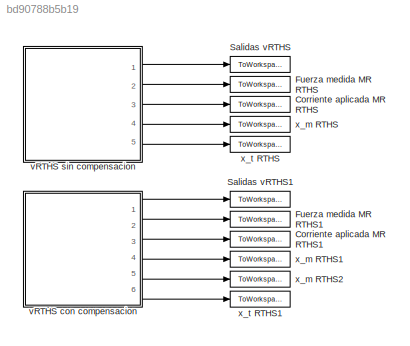
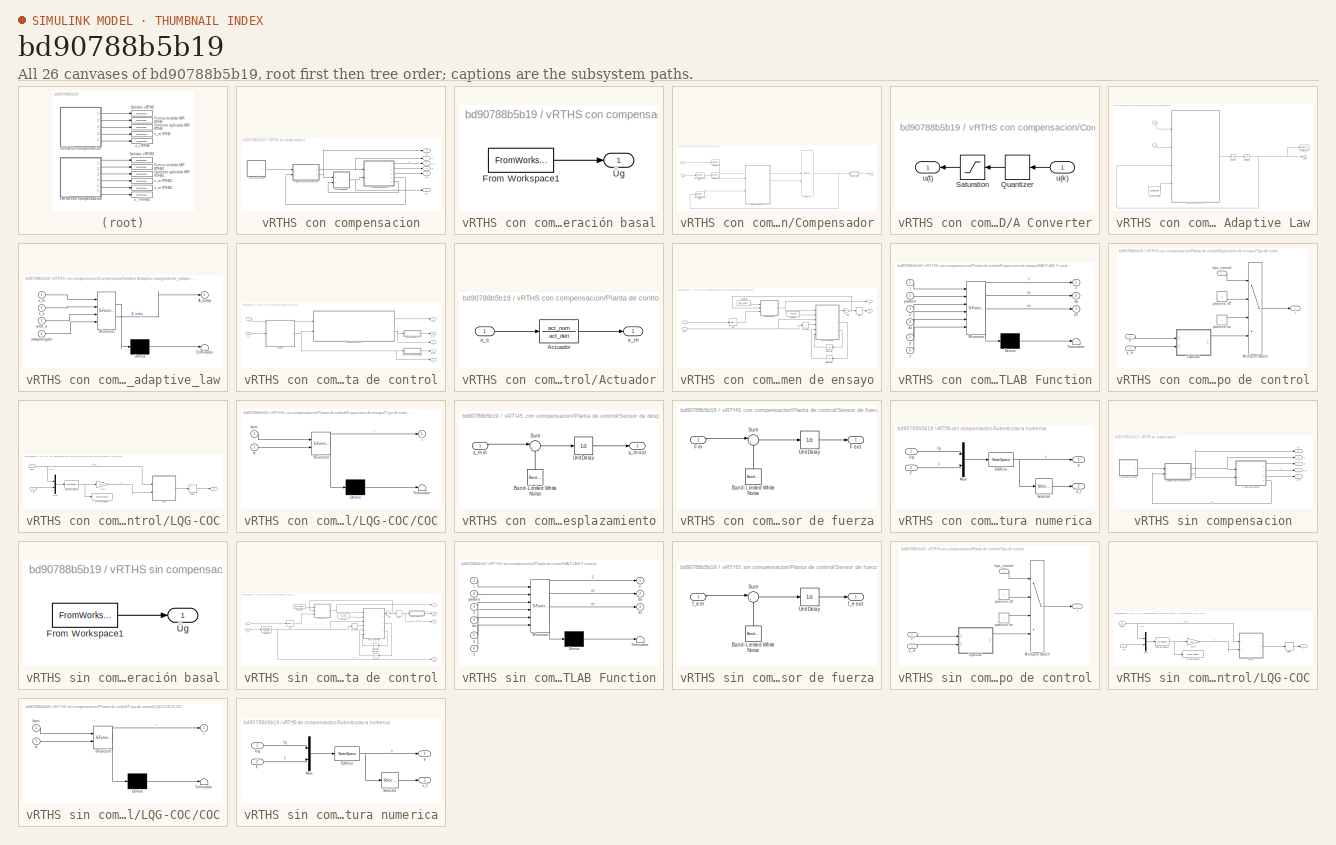
[diagram: thumbnail index - all 26 canvases of the model, root first then tree order]
MODEL slx_bd90788b5b19
KIND model
CONFIG AbsTol = auto
CONFIG EnableMultiTasking = off
CONFIG FixedStep = dtsim
CONFIG MaxStep = auto
CONFIG MinStep = auto
CONFIG RelTol = 1e-3
CONFIG SampleTimeConstraint = Unconstrained
CONFIG SolverName = ode4
CONFIG StartTime = 0.0
CONFIG StopTime = ttotal
BLOCK [ToWorkspace] Corriente aplicada MR RTHS
  FixptAsFi = on
  MaxDataPoints = inf
  NameLocation = right
  Ports = [1]
  SampleTime = -1
  SaveFormat = Timeseries
  VariableName = ic0
BLOCK [ToWorkspace] Corriente aplicada MR RTHS1
  FixptAsFi = on
  MaxDataPoints = inf
  NameLocation = right
  Ports = [1]
  SampleTime = -1
  SaveFormat = Timeseries
  VariableName = ic1
BLOCK [ToWorkspace] Fuerza medida MR RTHS
  FixptAsFi = on
  MaxDataPoints = inf
  NameLocation = right
  Ports = [1]
  SampleTime = -1
  SaveFormat = Timeseries
  VariableName = F0
BLOCK [ToWorkspace] Fuerza medida MR RTHS1
  FixptAsFi = on
  MaxDataPoints = inf
  NameLocation = right
  Ports = [1]
  SampleTime = -1
  SaveFormat = Timeseries
  VariableName = F1
BLOCK [ToWorkspace] Salidas vRTHS
  FixptAsFi = on
  MaxDataPoints = inf
  NameLocation = right
  Ports = [1]
  SampleTime = -1
  SaveFormat = Timeseries
  VariableName = y0
BLOCK [ToWorkspace] Salidas vRTHS1
  FixptAsFi = on
  MaxDataPoints = inf
  NameLocation = right
  Ports = [1]
  SampleTime = -1
  SaveFormat = Timeseries
  VariableName = y1
BLOCK [SubSystem] vRTHS con compensacion
  Ports = [0, 6]
  RequestExecContextInheritance = off
BLOCK [SubSystem] vRTHS con compensacion/Aceleración basal
  Ports = [0, 1]
  RequestExecContextInheritance = off
BLOCK [FromWorkspace] vRTHS con compensacion/Aceleración basal/From Workspace1
  OutputAfterFinalValue = Setting to zero
  VariableName = Ug
BLOCK [Outport] vRTHS con compensacion/Aceleración basal/Üg
  VectorParamsAs1DForOutWhenUnconnected = off
BLOCK [SubSystem] vRTHS con compensacion/Compensador
  Ports = [2, 1]
  RequestExecContextInheritance = off
BLOCK [SubSystem] vRTHS con compensacion/Compensador/D//A Converter
  NameLocation = top
  Ports = [1, 1]
  RequestExecContextInheritance = off
BLOCK [Quantizer] vRTHS con compensacion/Compensador/D//A Converter/Quantizer
  NameLocation = top
  QuantizationInterval = quantize_int
BLOCK [Saturate] vRTHS con compensacion/Compensador/D//A Converter/Saturation
  LowerLimit = sat_limit_lower
  NameLocation = top
  UpperLimit = sat_limit_upper
BLOCK [Inport] vRTHS con compensacion/Compensador/D//A Converter/u(k)
BLOCK [Outport] vRTHS con compensacion/Compensador/D//A Converter/u(t)
  VectorParamsAs1DForOutWhenUnconnected = off
BLOCK [DiscreteFir] vRTHS con compensacion/Compensador/Derivatives
  Coefficients = Derivadas
  InputPortMap = u0
  OutputPortMap = o0
  Ports = [1, 1]
BLOCK [DiscreteFir] vRTHS con compensacion/Compensador/Derivatives2
  Coefficients = Derivadas
  InputPortMap = u0
  OutputPortMap = o0
  Ports = [1, 1]
BLOCK [DiscreteTransferFcn] vRTHS con compensacion/Compensador/Discrete Butterworth Filter2
  Denominator = [denfilter]
  InputPortMap = u0
  Numerator = [numfilter]
  Ports = [1, 1]
BLOCK [DiscreteTransferFcn] vRTHS con compensacion/Compensador/Discrete Butterworth filter
  Denominator = [denfilter]
  InputPortMap = u0
  Numerator = [numfilter]
  Ports = [1, 1]
BLOCK [DotProduct] vRTHS con compensacion/Compensador/Dot Product
  OutDataTypeStr = Inherit: Inherit via internal rule
BLOCK [SubSystem] vRTHS con compensacion/Compensador/Gradient Adaptive Law
  Ports = [2, 1]
  RequestExecContextInheritance = off
BLOCK [Outport] vRTHS con compensacion/Compensador/Gradient Adaptive Law/A_amb
  VectorParamsAs1DForOutWhenUnconnected = off
BLOCK [Constant] vRTHS con compensacion/Compensador/Gradient Adaptive Law/Adaptive gain matrix
  Value = adaptivegain
BLOCK [Integrator] vRTHS con compensacion/Compensador/Gradient Adaptive Law/Integrator
  InitialCondition = A_amb_i'
  Ports = [1, 1]
BLOCK [Saturate] vRTHS con compensacion/Compensador/Gradient Adaptive Law/Saturation
  LowerLimit = min_amb
  UpperLimit = [max_amb]
BLOCK [ToWorkspace] vRTHS con compensacion/Compensador/Gradient Adaptive Law/To Workspace
  FixptAsFi = on
  MaxDataPoints = inf
  Ports = [1]
  SampleTime = -1
  SaveFormat = Timeseries
  VariableName = amb
BLOCK [SubSystem] vRTHS con compensacion/Compensador/Gradient Adaptive Law/gradiente_adaptive_law
  ErrorFcn = Stateflow.Translate.translate
  PermitHierarchicalResolution = ExplicitOnly
  Ports = [4, 1]
  RequestExecContextInheritance = off
  SFBlockType = MATLAB Function
  TreatAsAtomicUnit = on
BLOCK [Demux] vRTHS con compensacion/Compensador/Gradient Adaptive Law/gradiente_adaptive_law/ Demux 
  Outputs = 1
  Ports = [1, 1]
BLOCK [S-Function] vRTHS con compensacion/Compensador/Gradient Adaptive Law/gradiente_adaptive_law/ SFunction 
  EnableBusSupport = on
  FunctionName = sf_sfun
  PortCounts = [4 2]
  Ports = [4, 2]
  SFcnIsStateOwnerBlock = off
  SFunctionDeploymentMode = off
  Tag = Stateflow S-Function 3
BLOCK [Terminator] vRTHS con compensacion/Compensador/Gradient Adaptive Law/gradiente_adaptive_law/ Terminator 
BLOCK [Outport] vRTHS con compensacion/Compensador/Gradient Adaptive Law/gradiente_adaptive_law/A_ambp
  VectorParamsAs1DForOutWhenUnconnected = off
BLOCK [Inport] vRTHS con compensacion/Compensador/Gradient Adaptive Law/gradiente_adaptive_law/adaptivegain
  Port = 4
BLOCK [Inport] vRTHS con compensacion/Compensador/Gradient Adaptive Law/gradiente_adaptive_law/amb_a
  Port = 3
BLOCK [Inport] vRTHS con compensacion/Compensador/Gradient Adaptive Law/gradiente_adaptive_law/x_c
  Port = 2
BLOCK [Inport] vRTHS con compensacion/Compensador/Gradient Adaptive Law/gradiente_adaptive_law/x_m
BLOCK [Inport] vRTHS con compensacion/Compensador/Gradient Adaptive Law/x_c
  Port = 2
BLOCK [Inport] vRTHS con compensacion/Compensador/Gradient Adaptive Law/x_m
BLOCK [Outport] vRTHS con compensacion/Compensador/x_c
  VectorParamsAs1DForOutWhenUnconnected = off
BLOCK [Inport] vRTHS con compensacion/Compensador/x_m
  Port = 2
BLOCK [Inport] vRTHS con compensacion/Compensador/x_t
BLOCK [Outport] vRTHS con compensacion/F
  NameLocation = right
  Port = 2
  VectorParamsAs1DForOutWhenUnconnected = off
BLOCK [SubSystem] vRTHS con compensacion/Planta de control
  Ports = [2, 5]
  RequestExecContextInheritance = off
BLOCK [SubSystem] vRTHS con compensacion/Planta de control/Actuador
  Ports = [1, 1]
  RequestExecContextInheritance = off
BLOCK [TransferFcn] vRTHS con compensacion/Planta de control/Actuador/Actuador
  Denominator = act_den
  Numerator = act_num
BLOCK [Inport] vRTHS con compensacion/Planta de control/Actuador/x_c
BLOCK [Outport] vRTHS con compensacion/Planta de control/Actuador/x_m
BLOCK [SubSystem] vRTHS con compensacion/Planta de control/Especimen de ensayo
  Ports = [2, 2]
  RequestExecContextInheritance = off
BLOCK [Constant] vRTHS con compensacion/Planta de control/Especimen de ensayo/Constant
  Value = params
BLOCK [Constant] vRTHS con compensacion/Planta de control/Especimen de ensayo/Constant2
  Value = tipo_control
BLOCK [Delay] vRTHS con compensacion/Planta de control/Especimen de ensayo/Delay
  DelayLength = 1
  InitialCondition = 0
  InputPortMap = u0
  Ports = [1, 1]
BLOCK [Derivative] vRTHS con compensacion/Planta de control/Especimen de ensayo/Derivative
BLOCK [Outport] vRTHS con compensacion/Planta de control/Especimen de ensayo/F
  Port = 2
BLOCK [Gain] vRTHS con compensacion/Planta de control/Especimen de ensayo/Gain
  Gain = 4
BLOCK [Integrator] vRTHS con compensacion/Planta de control/Especimen de ensayo/Integrator
  NameLocation = top
  Ports = [1, 1]
BLOCK [Integrator] vRTHS con compensacion/Planta de control/Especimen de ensayo/Integrator1
  NameLocation = top
  Ports = [1, 1]
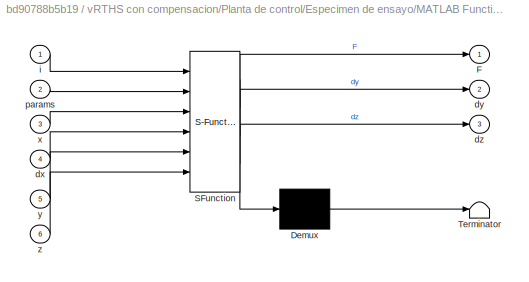
BLOCK [SubSystem] vRTHS con compensacion/Planta de control/Especimen de ensayo/MATLAB Function
  ErrorFcn = Stateflow.Translate.translate
  PermitHierarchicalResolution = ExplicitOnly
  Ports = [6, 3]
  RequestExecContextInheritance = off
  SFBlockType = MATLAB Function
  TreatAsAtomicUnit = on
BLOCK [Demux] vRTHS con compensacion/Planta de control/Especimen de ensayo/MATLAB Function/ Demux 
  Outputs = 1
  Ports = [1, 1]
BLOCK [S-Function] vRTHS con compensacion/Planta de control/Especimen de ensayo/MATLAB Function/ SFunction 
  EnableBusSupport = on
  FunctionName = sf_sfun
  PortCounts = [6 4]
  Ports = [6, 4]
  SFcnIsStateOwnerBlock = off
  SFunctionDeploymentMode = off
  Tag = Stateflow S-Function 2
BLOCK [Terminator] vRTHS con compensacion/Planta de control/Especimen de ensayo/MATLAB Function/ Terminator 
BLOCK [Outport] vRTHS con compensacion/Planta de control/Especimen de ensayo/MATLAB Function/F
BLOCK [Inport] vRTHS con compensacion/Planta de control/Especimen de ensayo/MATLAB Function/dx
  Port = 4
BLOCK [Outport] vRTHS con compensacion/Planta de control/Especimen de ensayo/MATLAB Function/dy
  Port = 2
BLOCK [Outport] vRTHS con compensacion/Planta de control/Especimen de ensayo/MATLAB Function/dz
  Port = 3
BLOCK [Inport] vRTHS con compensacion/Planta de control/Especimen de ensayo/MATLAB Function/i
BLOCK [Inport] vRTHS con compensacion/Planta de control/Especimen de ensayo/MATLAB Function/params
  Port = 2
BLOCK [Inport] vRTHS con compensacion/Planta de control/Especimen de ensayo/MATLAB Function/x
  Port = 3
BLOCK [Inport] vRTHS con compensacion/Planta de control/Especimen de ensayo/MATLAB Function/y
  Port = 5
BLOCK [Inport] vRTHS con compensacion/Planta de control/Especimen de ensayo/MATLAB Function/z
  Port = 6
BLOCK [SubSystem] vRTHS con compensacion/Planta de control/Especimen de ensayo/Tipo de control
  Ports = [3, 1]
  RequestExecContextInheritance = off
BLOCK [Inport] vRTHS con compensacion/Planta de control/Especimen de ensayo/Tipo de control/F
  Port = 2
BLOCK [SubSystem] vRTHS con compensacion/Planta de control/Especimen de ensayo/Tipo de control/LQG-COC
  Ports = [2, 1]
  RequestExecContextInheritance = off
BLOCK [SubSystem] vRTHS con compensacion/Planta de control/Especimen de ensayo/Tipo de control/LQG-COC/COC
  ErrorFcn = Stateflow.Translate.translate
  PermitHierarchicalResolution = ExplicitOnly
  Ports = [2, 1]
  RequestExecContextInheritance = off
  SFBlockType = MATLAB Function
  TreatAsAtomicUnit = on
BLOCK [Demux] vRTHS con compensacion/Planta de control/Especimen de ensayo/Tipo de control/LQG-COC/COC/ Demux 
  Outputs = 1
  Ports = [1, 1]
BLOCK [S-Function] vRTHS con compensacion/Planta de control/Especimen de ensayo/Tipo de control/LQG-COC/COC/ SFunction 
  EnableBusSupport = on
  FunctionName = sf_sfun
  PortCounts = [2 2]
  Ports = [2, 2]
  SFcnIsStateOwnerBlock = off
  SFunctionDeploymentMode = off
  Tag = Stateflow S-Function 5
BLOCK [Terminator] vRTHS con compensacion/Planta de control/Especimen de ensayo/Tipo de control/LQG-COC/COC/ Terminator 
BLOCK [Inport] vRTHS con compensacion/Planta de control/Especimen de ensayo/Tipo de control/LQG-COC/COC/famr
BLOCK [Inport] vRTHS con compensacion/Planta de control/Especimen de ensayo/Tipo de control/LQG-COC/COC/fc
  Port = 2
BLOCK [Outport] vRTHS con compensacion/Planta de control/Especimen de ensayo/Tipo de control/LQG-COC/COC/i
BLOCK [Delay] vRTHS con compensacion/Planta de control/Especimen de ensayo/Tipo de control/LQG-COC/Delay
  DelayLength = 1
  InitialCondition = 0
  InputPortMap = u0
  Ports = [1, 1]
BLOCK [StateSpace] vRTHS con compensacion/Planta de control/Especimen de ensayo/Tipo de control/LQG-COC/Filto de Kalman
  A = sys_kalman.a
  B = sys_kalman.b
  C = sys_kalman.c
  D = sys_kalman.d
  InitialCondition = 0
  Ports = [1, 1]
BLOCK [Gain] vRTHS con compensacion/Planta de control/Especimen de ensayo/Tipo de control/LQG-COC/LQR
  Gain = -Kc
  Multiplication = Matrix(K*u) (u vector)
BLOCK [Mux] vRTHS con compensacion/Planta de control/Especimen de ensayo/Tipo de control/LQG-COC/Mux
  DisplayOption = bar
  Inputs = 2
  Ports = [2, 1]
BLOCK [ToWorkspace] vRTHS con compensacion/Planta de control/Especimen de ensayo/Tipo de control/LQG-COC/To Workspace
  FixptAsFi = on
  MaxDataPoints = inf
  Ports = [1]
  SampleTime = -1
  SaveFormat = Timeseries
  VariableName = x_kalman1
BLOCK [Inport] vRTHS con compensacion/Planta de control/Especimen de ensayo/Tipo de control/LQG-COC/famr
BLOCK [Outport] vRTHS con compensacion/Planta de control/Especimen de ensayo/Tipo de control/LQG-COC/i
BLOCK [Inport] vRTHS con compensacion/Planta de control/Especimen de ensayo/Tipo de control/LQG-COC/y_m
  Port = 2
BLOCK [MultiPortSwitch] vRTHS con compensacion/Planta de control/Especimen de ensayo/Tipo de control/Multiport Switch
  InputSameDT = off
  Ports = [4, 1]
  SaturateOnIntegerOverflow = off
BLOCK [Outport] vRTHS con compensacion/Planta de control/Especimen de ensayo/Tipo de control/i
BLOCK [Constant] vRTHS con compensacion/Planta de control/Especimen de ensayo/Tipo de control/passive off
  Value = 0
BLOCK [Constant] vRTHS con compensacion/Planta de control/Especimen de ensayo/Tipo de control/passive on
BLOCK [Inport] vRTHS con compensacion/Planta de control/Especimen de ensayo/Tipo de control/tipo_control
BLOCK [Inport] vRTHS con compensacion/Planta de control/Especimen de ensayo/Tipo de control/y_m
  Port = 3
BLOCK [Selector] vRTHS con compensacion/Planta de control/Especimen de ensayo/ddx
  IndexOptions = Index vector (dialog)
  Indices = 7:9
  InputPortWidth = 9
  OutputSizes = 1
  Ports = [1, 1]
BLOCK [Outport] vRTHS con compensacion/Planta de control/Especimen de ensayo/ic
BLOCK [Inport] vRTHS con compensacion/Planta de control/Especimen de ensayo/x_m
  Port = 2
BLOCK [Inport] vRTHS con compensacion/Planta de control/Especimen de ensayo/y
BLOCK [Outport] vRTHS con compensacion/Planta de control/F
  Port = 2
BLOCK [Outport] vRTHS con compensacion/Planta de control/F_m
  Port = 4
BLOCK [SubSystem] vRTHS con compensacion/Planta de control/Sensor de desplazamiento
  Ports = [1, 1]
  RequestExecContextInheritance = off
BLOCK [Reference] vRTHS con compensacion/Planta de control/Sensor de desplazamiento/Band-Limited White Noise  REF=simulink/Sources/Band-Limited
White Noise
  NameLocation = right
  Ports = [0, 1]
  SourceBlock = simulink/Sources/Band-Limited\nWhite Noise
  SourceProductBaseCode = SL
  SourceType = Band-Limited White Noise.
BLOCK [Sum] vRTHS con compensacion/Planta de control/Sensor de desplazamiento/Sum
  Inputs = |++
  Ports = [2, 1]
BLOCK [UnitDelay] vRTHS con compensacion/Planta de control/Sensor de desplazamiento/Unit Delay
  HasFrameUpgradeWarning = on
  SampleTime = -1
BLOCK [Inport] vRTHS con compensacion/Planta de control/Sensor de desplazamiento/x_m in
BLOCK [Outport] vRTHS con compensacion/Planta de control/Sensor de desplazamiento/x_m out
  VectorParamsAs1DForOutWhenUnconnected = off
BLOCK [SubSystem] vRTHS con compensacion/Planta de control/Sensor de fuerza
  Ports = [1, 1]
  RequestExecContextInheritance = off
BLOCK [Reference] vRTHS con compensacion/Planta de control/Sensor de fuerza/Band-Limited White Noise  REF=simulink/Sources/Band-Limited
White Noise
  NameLocation = right
  Ports = [0, 1]
  SourceBlock = simulink/Sources/Band-Limited\nWhite Noise
  SourceProductBaseCode = SL
  SourceType = Band-Limited White Noise.
BLOCK [Inport] vRTHS con compensacion/Planta de control/Sensor de fuerza/F in
BLOCK [Outport] vRTHS con compensacion/Planta de control/Sensor de fuerza/F out
  VectorParamsAs1DForOutWhenUnconnected = off
BLOCK [Sum] vRTHS con compensacion/Planta de control/Sensor de fuerza/Sum
  Inputs = |++
  Ports = [2, 1]
BLOCK [UnitDelay] vRTHS con compensacion/Planta de control/Sensor de fuerza/Unit Delay
  HasFrameUpgradeWarning = on
  SampleTime = -1
BLOCK [Outport] vRTHS con compensacion/Planta de control/i_c
BLOCK [Outport] vRTHS con compensacion/Planta de control/x
  Port = 3
BLOCK [Inport] vRTHS con compensacion/Planta de control/x_c
  Port = 2
BLOCK [Outport] vRTHS con compensacion/Planta de control/x_m
  Port = 5
BLOCK [Inport] vRTHS con compensacion/Planta de control/y
  NameLocation = top
BLOCK [SubSystem] vRTHS con compensacion/Subestructura numerica
  Ports = [2, 2]
  RequestExecContextInheritance = off
BLOCK [StateSpace] vRTHS con compensacion/Subestructura numerica/Edificio
  A = Edificio.A
  B = Edificio.B
  C = Edificio.C
  D = Edificio.D
  InitialCondition = 0
  Ports = [1, 1]
BLOCK [Inport] vRTHS con compensacion/Subestructura numerica/F 
  Port = 2
BLOCK [Mux] vRTHS con compensacion/Subestructura numerica/Mux
  DisplayOption = bar
  Inputs = 2
  Ports = [2, 1]
BLOCK [Selector] vRTHS con compensacion/Subestructura numerica/Selector
  IndexOptions = Index vector (dialog)
  Indices = 1
  InputPortWidth = 9
  OutputSizes = 1
  Ports = [1, 1]
BLOCK [Inport] vRTHS con compensacion/Subestructura numerica/Ug
BLOCK [Outport] vRTHS con compensacion/Subestructura numerica/x_t
  Port = 2
BLOCK [Outport] vRTHS con compensacion/Subestructura numerica/y
BLOCK [Outport] vRTHS con compensacion/i_c
  NameLocation = right
  Port = 3
  VectorParamsAs1DForOutWhenUnconnected = off
BLOCK [Outport] vRTHS con compensacion/x_c
  NameLocation = right
  Port = 5
  VectorParamsAs1DForOutWhenUnconnected = off
BLOCK [Outport] vRTHS con compensacion/x_m
  NameLocation = right
  Port = 4
  VectorParamsAs1DForOutWhenUnconnected = off
BLOCK [Outport] vRTHS con compensacion/x_t
  NameLocation = right
  Port = 6
  VectorParamsAs1DForOutWhenUnconnected = off
BLOCK [Outport] vRTHS con compensacion/y
  NameLocation = right
  VectorParamsAs1DForOutWhenUnconnected = off
BLOCK [SubSystem] vRTHS sin compensacion
  Ports = [0, 5]
  RequestExecContextInheritance = off
BLOCK [SubSystem] vRTHS sin compensacion/Aceleración basal
  Ports = [0, 1]
  RequestExecContextInheritance = off
BLOCK [FromWorkspace] vRTHS sin compensacion/Aceleración basal/From Workspace1
  OutputAfterFinalValue = Setting to zero
  VariableName = Ug
BLOCK [Outport] vRTHS sin compensacion/Aceleración basal/Üg
  VectorParamsAs1DForOutWhenUnconnected = off
BLOCK [Outport] vRTHS sin compensacion/F
  NameLocation = right
  Port = 2
  VectorParamsAs1DForOutWhenUnconnected = off
BLOCK [SubSystem] vRTHS sin compensacion/Planta de control
  Ports = [2, 4]
  RequestExecContextInheritance = off
BLOCK [TransferFcn] vRTHS sin compensacion/Planta de control/Actuador
  Denominator = act_den
  Numerator = act_num
BLOCK [Constant] vRTHS sin compensacion/Planta de control/Constant
  Value = params
BLOCK [Constant] vRTHS sin compensacion/Planta de control/Constant2
  Value = tipo_control
BLOCK [Delay] vRTHS sin compensacion/Planta de control/Delay
  DelayLength = 1
  InitialCondition = 0
  InputPortMap = u0
  Ports = [1, 1]
BLOCK [Derivative] vRTHS sin compensacion/Planta de control/Derivative
BLOCK [Outport] vRTHS sin compensacion/Planta de control/F
BLOCK [Outport] vRTHS sin compensacion/Planta de control/F_m
  Port = 4
BLOCK [Gain] vRTHS sin compensacion/Planta de control/Gain
  Gain = 4
BLOCK [Integrator] vRTHS sin compensacion/Planta de control/Integrator
  NameLocation = top
  Ports = [1, 1]
BLOCK [Integrator] vRTHS sin compensacion/Planta de control/Integrator1
  NameLocation = top
  Ports = [1, 1]
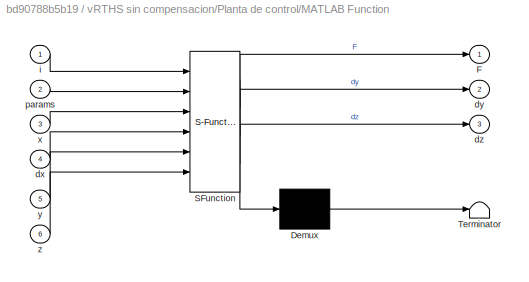
BLOCK [SubSystem] vRTHS sin compensacion/Planta de control/MATLAB Function
  ErrorFcn = Stateflow.Translate.translate
  PermitHierarchicalResolution = ExplicitOnly
  Ports = [6, 3]
  RequestExecContextInheritance = off
  SFBlockType = MATLAB Function
  TreatAsAtomicUnit = on
BLOCK [Demux] vRTHS sin compensacion/Planta de control/MATLAB Function/ Demux 
  Outputs = 1
  Ports = [1, 1]
BLOCK [S-Function] vRTHS sin compensacion/Planta de control/MATLAB Function/ SFunction 
  EnableBusSupport = on
  FunctionName = sf_sfun
  PortCounts = [6 4]
  Ports = [6, 4]
  SFcnIsStateOwnerBlock = off
  SFunctionDeploymentMode = off
  Tag = Stateflow S-Function 1
BLOCK [Terminator] vRTHS sin compensacion/Planta de control/MATLAB Function/ Terminator 
BLOCK [Outport] vRTHS sin compensacion/Planta de control/MATLAB Function/F
BLOCK [Inport] vRTHS sin compensacion/Planta de control/MATLAB Function/dx
  Port = 4
BLOCK [Outport] vRTHS sin compensacion/Planta de control/MATLAB Function/dy
  Port = 2
BLOCK [Outport] vRTHS sin compensacion/Planta de control/MATLAB Function/dz
  Port = 3
BLOCK [Inport] vRTHS sin compensacion/Planta de control/MATLAB Function/i
BLOCK [Inport] vRTHS sin compensacion/Planta de control/MATLAB Function/params
  Port = 2
BLOCK [Inport] vRTHS sin compensacion/Planta de control/MATLAB Function/x
  Port = 3
BLOCK [Inport] vRTHS sin compensacion/Planta de control/MATLAB Function/y
  Port = 5
BLOCK [Inport] vRTHS sin compensacion/Planta de control/MATLAB Function/z
  Port = 6
BLOCK [SubSystem] vRTHS sin compensacion/Planta de control/Sensor de fuerza
  NameLocation = top
  Ports = [1, 1]
  RequestExecContextInheritance = off
BLOCK [Reference] vRTHS sin compensacion/Planta de control/Sensor de fuerza/Band-Limited White Noise  REF=simulink/Sources/Band-Limited
White Noise
  NameLocation = right
  Ports = [0, 1]
  SourceBlock = simulink/Sources/Band-Limited\nWhite Noise
  SourceProductBaseCode = SL
  SourceType = Band-Limited White Noise.
BLOCK [Sum] vRTHS sin compensacion/Planta de control/Sensor de fuerza/Sum
  Inputs = |++
  Ports = [2, 1]
BLOCK [UnitDelay] vRTHS sin compensacion/Planta de control/Sensor de fuerza/Unit Delay
  HasFrameUpgradeWarning = on
  SampleTime = -1
BLOCK [Inport] vRTHS sin compensacion/Planta de control/Sensor de fuerza/f_e in
BLOCK [Outport] vRTHS sin compensacion/Planta de control/Sensor de fuerza/f_e out
  VectorParamsAs1DForOutWhenUnconnected = off
BLOCK [SubSystem] vRTHS sin compensacion/Planta de control/Tipo de control
  Ports = [3, 1]
  RequestExecContextInheritance = off
BLOCK [Inport] vRTHS sin compensacion/Planta de control/Tipo de control/F
  Port = 2
BLOCK [SubSystem] vRTHS sin compensacion/Planta de control/Tipo de control/LQG-COC
  Ports = [2, 1]
  RequestExecContextInheritance = off
BLOCK [SubSystem] vRTHS sin compensacion/Planta de control/Tipo de control/LQG-COC/COC
  ErrorFcn = Stateflow.Translate.translate
  PermitHierarchicalResolution = ExplicitOnly
  Ports = [2, 1]
  RequestExecContextInheritance = off
  SFBlockType = MATLAB Function
  TreatAsAtomicUnit = on
BLOCK [Demux] vRTHS sin compensacion/Planta de control/Tipo de control/LQG-COC/COC/ Demux 
  Outputs = 1
  Ports = [1, 1]
BLOCK [S-Function] vRTHS sin compensacion/Planta de control/Tipo de control/LQG-COC/COC/ SFunction 
  EnableBusSupport = on
  FunctionName = sf_sfun
  PortCounts = [2 2]
  Ports = [2, 2]
  SFcnIsStateOwnerBlock = off
  SFunctionDeploymentMode = off
  Tag = Stateflow S-Function 4
BLOCK [Terminator] vRTHS sin compensacion/Planta de control/Tipo de control/LQG-COC/COC/ Terminator 
BLOCK [Inport] vRTHS sin compensacion/Planta de control/Tipo de control/LQG-COC/COC/famr
BLOCK [Inport] vRTHS sin compensacion/Planta de control/Tipo de control/LQG-COC/COC/fc
  Port = 2
BLOCK [Outport] vRTHS sin compensacion/Planta de control/Tipo de control/LQG-COC/COC/i
BLOCK [Delay] vRTHS sin compensacion/Planta de control/Tipo de control/LQG-COC/Delay
  DelayLength = 1
  InitialCondition = 0
  InputPortMap = u0
  Ports = [1, 1]
BLOCK [StateSpace] vRTHS sin compensacion/Planta de control/Tipo de control/LQG-COC/Filto de Kalman
  A = sys_kalman.a
  B = sys_kalman.b
  C = sys_kalman.c
  D = sys_kalman.d
  InitialCondition = 0
  Ports = [1, 1]
BLOCK [Gain] vRTHS sin compensacion/Planta de control/Tipo de control/LQG-COC/LQR
  Gain = -Kc
  Multiplication = Matrix(K*u) (u vector)
BLOCK [Mux] vRTHS sin compensacion/Planta de control/Tipo de control/LQG-COC/Mux
  DisplayOption = bar
  Inputs = 2
  Ports = [2, 1]
BLOCK [ToWorkspace] vRTHS sin compensacion/Planta de control/Tipo de control/LQG-COC/To Workspace2
  FixptAsFi = on
  MaxDataPoints = inf
  Ports = [1]
  SampleTime = -1
  SaveFormat = Timeseries
  VariableName = x_kalman0
BLOCK [Inport] vRTHS sin compensacion/Planta de control/Tipo de control/LQG-COC/famr
BLOCK [Outport] vRTHS sin compensacion/Planta de control/Tipo de control/LQG-COC/i
BLOCK [Inport] vRTHS sin compensacion/Planta de control/Tipo de control/LQG-COC/y_m
  Port = 2
BLOCK [MultiPortSwitch] vRTHS sin compensacion/Planta de control/Tipo de control/Multiport Switch
  InputSameDT = off
  Ports = [4, 1]
  SaturateOnIntegerOverflow = off
BLOCK [Outport] vRTHS sin compensacion/Planta de control/Tipo de control/i
BLOCK [Constant] vRTHS sin compensacion/Planta de control/Tipo de control/passive off
  Value = 0
BLOCK [Constant] vRTHS sin compensacion/Planta de control/Tipo de control/passive on
BLOCK [Inport] vRTHS sin compensacion/Planta de control/Tipo de control/tipo_control
BLOCK [Inport] vRTHS sin compensacion/Planta de control/Tipo de control/y_m
  Port = 3
BLOCK [Selector] vRTHS sin compensacion/Planta de control/ddx
  IndexOptions = Index vector (dialog)
  Indices = 7:9
  InputPortWidth = 9
  OutputSizes = 1
  Ports = [1, 1]
BLOCK [Outport] vRTHS sin compensacion/Planta de control/i_c
  Port = 2
BLOCK [Inport] vRTHS sin compensacion/Planta de control/x_c
  Port = 2
BLOCK [Outport] vRTHS sin compensacion/Planta de control/x_m
  Port = 3
BLOCK [Inport] vRTHS sin compensacion/Planta de control/y
  NameLocation = top
BLOCK [SubSystem] vRTHS sin compensacion/Subestructura numerica
  Ports = [2, 2]
  RequestExecContextInheritance = off
BLOCK [StateSpace] vRTHS sin compensacion/Subestructura numerica/Edificio
  A = Edificio.A
  B = Edificio.B
  C = Edificio.C
  D = Edificio.D
  InitialCondition = 0
  Ports = [1, 1]
BLOCK [Inport] vRTHS sin compensacion/Subestructura numerica/F 
  Port = 2
BLOCK [Mux] vRTHS sin compensacion/Subestructura numerica/Mux
  DisplayOption = bar
  Inputs = 2
  Ports = [2, 1]
BLOCK [Selector] vRTHS sin compensacion/Subestructura numerica/Selector
  IndexOptions = Index vector (dialog)
  Indices = 1
  InputPortWidth = 9
  OutputSizes = 1
  Ports = [1, 1]
BLOCK [Inport] vRTHS sin compensacion/Subestructura numerica/Ug
BLOCK [Outport] vRTHS sin compensacion/Subestructura numerica/x_t
  Port = 2
BLOCK [Outport] vRTHS sin compensacion/Subestructura numerica/y
BLOCK [Outport] vRTHS sin compensacion/i_c
  NameLocation = right
  Port = 3
  VectorParamsAs1DForOutWhenUnconnected = off
BLOCK [Outport] vRTHS sin compensacion/x_m
  NameLocation = right
  Port = 4
  VectorParamsAs1DForOutWhenUnconnected = off
BLOCK [Outport] vRTHS sin compensacion/x_t
  NameLocation = right
  Port = 5
  VectorParamsAs1DForOutWhenUnconnected = off
BLOCK [Outport] vRTHS sin compensacion/y
  NameLocation = right
  VectorParamsAs1DForOutWhenUnconnected = off
BLOCK [ToWorkspace] x_m RTHS
  FixptAsFi = on
  MaxDataPoints = inf
  NameLocation = right
  Ports = [1]
  SampleTime = -1
  SaveFormat = Timeseries
  VariableName = x_m0
BLOCK [ToWorkspace] x_m RTHS1
  FixptAsFi = on
  MaxDataPoints = inf
  NameLocation = right
  Ports = [1]
  SampleTime = -1
  SaveFormat = Timeseries
  VariableName = x_m1
BLOCK [ToWorkspace] x_m RTHS2
  FixptAsFi = on
  MaxDataPoints = inf
  NameLocation = right
  Ports = [1]
  SampleTime = -1
  SaveFormat = Timeseries
  VariableName = x_c1
BLOCK [ToWorkspace] x_t RTHS
  FixptAsFi = on
  MaxDataPoints = inf
  NameLocation = right
  Ports = [1]
  SampleTime = -1
  SaveFormat = Timeseries
  VariableName = x_t0
BLOCK [ToWorkspace] x_t RTHS1
  FixptAsFi = on
  MaxDataPoints = inf
  NameLocation = right
  Ports = [1]
  SampleTime = -1
  SaveFormat = Timeseries
  VariableName = x_t1
ANNOTATION vRTHS con compensacion/Planta de control/Especimen de ensayo/Tipo de control/LQG-COC: LQG
ANNOTATION vRTHS sin compensacion/Planta de control/Tipo de control/LQG-COC: LQG
LINE vRTHS con compensacion/Aceleración basal/From Workspace1:1 -> vRTHS con compensacion/Aceleración basal/Üg:1
LINE vRTHS con compensacion/Aceleración basal:1 -> vRTHS con compensacion/Subestructura numerica:1
LINE vRTHS con compensacion/Compensador/D//A Converter/Quantizer:1 -> vRTHS con compensacion/Compensador/D//A Converter/Saturation:1
LINE vRTHS con compensacion/Compensador/D//A Converter/Saturation:1 -> vRTHS con compensacion/Compensador/D//A Converter/u(t):1
LINE vRTHS con compensacion/Compensador/D//A Converter/u(k):1 -> vRTHS con compensacion/Compensador/D//A Converter/Quantizer:1
LINE vRTHS con compensacion/Compensador/D//A Converter:1 -> vRTHS con compensacion/Compensador/x_c:1
LINE vRTHS con compensacion/Compensador/Derivatives2:1 -> vRTHS con compensacion/Compensador/Gradient Adaptive Law:1
LINE vRTHS con compensacion/Compensador/Derivatives:1 -> vRTHS con compensacion/Compensador/Dot Product:1
LINE vRTHS con compensacion/Compensador/Discrete Butterworth Filter2:1 -> vRTHS con compensacion/Compensador/Gradient Adaptive Law:2
LINE vRTHS con compensacion/Compensador/Discrete Butterworth filter:1 -> vRTHS con compensacion/Compensador/Derivatives2:1
NET vRTHS con compensacion/Compensador/Dot Product:1 -> vRTHS con compensacion/Compensador/D//A Converter:1, vRTHS con compensacion/Compensador/Discrete Butterworth Filter2:1
LINE vRTHS con compensacion/Compensador/Gradient Adaptive Law/Adaptive gain matrix:1 -> vRTHS con compensacion/Compensador/Gradient Adaptive Law/gradiente_adaptive_law:4
LINE vRTHS con compensacion/Compensador/Gradient Adaptive Law/Integrator:1 -> vRTHS con compensacion/Compensador/Gradient Adaptive Law/Saturation:1
NET vRTHS con compensacion/Compensador/Gradient Adaptive Law/Saturation:1 -> vRTHS con compensacion/Compensador/Gradient Adaptive Law/A_amb:1, vRTHS con compensacion/Compensador/Gradient Adaptive Law/To Workspace:1, vRTHS con compensacion/Compensador/Gradient Adaptive Law/gradiente_adaptive_law:3
LINE vRTHS con compensacion/Compensador/Gradient Adaptive Law/gradiente_adaptive_law:1 -> vRTHS con compensacion/Compensador/Gradient Adaptive Law/Integrator:1
LINE vRTHS con compensacion/Compensador/Gradient Adaptive Law/x_c:1 -> vRTHS con compensacion/Compensador/Gradient Adaptive Law/gradiente_adaptive_law:2
LINE vRTHS con compensacion/Compensador/Gradient Adaptive Law/x_m:1 -> vRTHS con compensacion/Compensador/Gradient Adaptive Law/gradiente_adaptive_law:1
LINE vRTHS con compensacion/Compensador/Gradient Adaptive Law:1 -> vRTHS con compensacion/Compensador/Dot Product:2
LINE vRTHS con compensacion/Compensador/x_m:1 -> vRTHS con compensacion/Compensador/Discrete Butterworth filter:1
LINE vRTHS con compensacion/Compensador/x_t:1 -> vRTHS con compensacion/Compensador/Derivatives:1
NET vRTHS con compensacion/Compensador:1 -> vRTHS con compensacion/Planta de control:2, vRTHS con compensacion/x_c:1
LINE vRTHS con compensacion/Planta de control/Actuador/Actuador:1 -> vRTHS con compensacion/Planta de control/Actuador/x_m:1
LINE vRTHS con compensacion/Planta de control/Actuador/x_c:1 -> vRTHS con compensacion/Planta de control/Actuador/Actuador:1
NET vRTHS con compensacion/Planta de control/Actuador:1 -> vRTHS con compensacion/Planta de control/Especimen de ensayo:2, vRTHS con compensacion/Planta de control/Sensor de desplazamiento:1, vRTHS con compensacion/Planta de control/x:1
LINE vRTHS con compensacion/Planta de control/Especimen de ensayo/Constant2:1 -> vRTHS con compensacion/Planta de control/Especimen de ensayo/Tipo de control:1
LINE vRTHS con compensacion/Planta de control/Especimen de ensayo/Constant:1 -> vRTHS con compensacion/Planta de control/Especimen de ensayo/MATLAB Function:2
LINE vRTHS con compensacion/Planta de control/Especimen de ensayo/Delay:1 -> vRTHS con compensacion/Planta de control/Especimen de ensayo/F:1
LINE vRTHS con compensacion/Planta de control/Especimen de ensayo/Derivative:1 -> vRTHS con compensacion/Planta de control/Especimen de ensayo/MATLAB Function:4
NET vRTHS con compensacion/Planta de control/Especimen de ensayo/Gain:1 -> vRTHS con compensacion/Planta de control/Especimen de ensayo/Delay:1, vRTHS con compensacion/Planta de control/Especimen de ensayo/Tipo de control:2
LINE vRTHS con compensacion/Planta de control/Especimen de ensayo/Integrator1:1 -> vRTHS con compensacion/Planta de control/Especimen de ensayo/MATLAB Function:5
LINE vRTHS con compensacion/Planta de control/Especimen de ensayo/Integrator:1 -> vRTHS con compensacion/Planta de control/Especimen de ensayo/MATLAB Function:6
LINE vRTHS con compensacion/Planta de control/Especimen de ensayo/MATLAB Function:1 -> vRTHS con compensacion/Planta de control/Especimen de ensayo/Gain:1
LINE vRTHS con compensacion/Planta de control/Especimen de ensayo/MATLAB Function:2 -> vRTHS con compensacion/Planta de control/Especimen de ensayo/Integrator1:1
LINE vRTHS con compensacion/Planta de control/Especimen de ensayo/MATLAB Function:3 -> vRTHS con compensacion/Planta de control/Especimen de ensayo/Integrator:1
LINE vRTHS con compensacion/Planta de control/Especimen de ensayo/Tipo de control/F:1 -> vRTHS con compensacion/Planta de control/Especimen de ensayo/Tipo de control/LQG-COC:1
LINE vRTHS con compensacion/Planta de control/Especimen de ensayo/Tipo de control/LQG-COC/COC:1 -> vRTHS con compensacion/Planta de control/Especimen de ensayo/Tipo de control/LQG-COC/Delay:1
LINE vRTHS con compensacion/Planta de control/Especimen de ensayo/Tipo de control/LQG-COC/Delay:1 -> vRTHS con compensacion/Planta de control/Especimen de ensayo/Tipo de control/LQG-COC/i:1
NET vRTHS con compensacion/Planta de control/Especimen de ensayo/Tipo de control/LQG-COC/Filto de Kalman:1 -> vRTHS con compensacion/Planta de control/Especimen de ensayo/Tipo de control/LQG-COC/LQR:1, vRTHS con compensacion/Planta de control/Especimen de ensayo/Tipo de control/LQG-COC/To Workspace:1
LINE vRTHS con compensacion/Planta de control/Especimen de ensayo/Tipo de control/LQG-COC/LQR:1 -> vRTHS con compensacion/Planta de control/Especimen de ensayo/Tipo de control/LQG-COC/COC:2
LINE vRTHS con compensacion/Planta de control/Especimen de ensayo/Tipo de control/LQG-COC/Mux:1 -> vRTHS con compensacion/Planta de control/Especimen de ensayo/Tipo de control/LQG-COC/Filto de Kalman:1
NET vRTHS con compensacion/Planta de control/Especimen de ensayo/Tipo de control/LQG-COC/famr:1 -> vRTHS con compensacion/Planta de control/Especimen de ensayo/Tipo de control/LQG-COC/COC:1, vRTHS con compensacion/Planta de control/Especimen de ensayo/Tipo de control/LQG-COC/Mux:1
LINE vRTHS con compensacion/Planta de control/Especimen de ensayo/Tipo de control/LQG-COC/y_m:1 -> vRTHS con compensacion/Planta de control/Especimen de ensayo/Tipo de control/LQG-COC/Mux:2
LINE vRTHS con compensacion/Planta de control/Especimen de ensayo/Tipo de control/LQG-COC:1 -> vRTHS con compensacion/Planta de control/Especimen de ensayo/Tipo de control/Multiport Switch:4
LINE vRTHS con compensacion/Planta de control/Especimen de ensayo/Tipo de control/Multiport Switch:1 -> vRTHS con compensacion/Planta de control/Especimen de ensayo/Tipo de control/i:1
LINE vRTHS con compensacion/Planta de control/Especimen de ensayo/Tipo de control/passive off:1 -> vRTHS con compensacion/Planta de control/Especimen de ensayo/Tipo de control/Multiport Switch:2
LINE vRTHS con compensacion/Planta de control/Especimen de ensayo/Tipo de control/passive on:1 -> vRTHS con compensacion/Planta de control/Especimen de ensayo/Tipo de control/Multiport Switch:3
LINE vRTHS con compensacion/Planta de control/Especimen de ensayo/Tipo de control/tipo_control:1 -> vRTHS con compensacion/Planta de control/Especimen de ensayo/Tipo de control/Multiport Switch:1
LINE vRTHS con compensacion/Planta de control/Especimen de ensayo/Tipo de control/y_m:1 -> vRTHS con compensacion/Planta de control/Especimen de ensayo/Tipo de control/LQG-COC:2
NET vRTHS con compensacion/Planta de control/Especimen de ensayo/Tipo de control:1 -> vRTHS con compensacion/Planta de control/Especimen de ensayo/MATLAB Function:1, vRTHS con compensacion/Planta de control/Especimen de ensayo/ic:1
LINE vRTHS con compensacion/Planta de control/Especimen de ensayo/ddx:1 -> vRTHS con compensacion/Planta de control/Especimen de ensayo/Tipo de control:3
NET vRTHS con compensacion/Planta de control/Especimen de ensayo/x_m:1 -> vRTHS con compensacion/Planta de control/Especimen de ensayo/Derivative:1, vRTHS con compensacion/Planta de control/Especimen de ensayo/MATLAB Function:3
LINE vRTHS con compensacion/Planta de control/Especimen de ensayo/y:1 -> vRTHS con compensacion/Planta de control/Especimen de ensayo/ddx:1
LINE vRTHS con compensacion/Planta de control/Especimen de ensayo:1 -> vRTHS con compensacion/Planta de control/i_c:1
NET vRTHS con compensacion/Planta de control/Especimen de ensayo:2 -> vRTHS con compensacion/Planta de control/F:1, vRTHS con compensacion/Planta de control/Sensor de fuerza:1
LINE vRTHS con compensacion/Planta de control/Sensor de desplazamiento/Band-Limited White Noise:1 -> vRTHS con compensacion/Planta de control/Sensor de desplazamiento/Sum:2
LINE vRTHS con compensacion/Planta de control/Sensor de desplazamiento/Sum:1 -> vRTHS con compensacion/Planta de control/Sensor de desplazamiento/Unit Delay:1
LINE vRTHS con compensacion/Planta de control/Sensor de desplazamiento/Unit Delay:1 -> vRTHS con compensacion/Planta de control/Sensor de desplazamiento/x_m out:1
LINE vRTHS con compensacion/Planta de control/Sensor de desplazamiento/x_m in:1 -> vRTHS con compensacion/Planta de control/Sensor de desplazamiento/Sum:1
LINE vRTHS con compensacion/Planta de control/Sensor de desplazamiento:1 -> vRTHS con compensacion/Planta de control/x_m:1
LINE vRTHS con compensacion/Planta de control/Sensor de fuerza/Band-Limited White Noise:1 -> vRTHS con compensacion/Planta de control/Sensor de fuerza/Sum:2
LINE vRTHS con compensacion/Planta de control/Sensor de fuerza/F in:1 -> vRTHS con compensacion/Planta de control/Sensor de fuerza/Sum:1
LINE vRTHS con compensacion/Planta de control/Sensor de fuerza/Sum:1 -> vRTHS con compensacion/Planta de control/Sensor de fuerza/Unit Delay:1
LINE vRTHS con compensacion/Planta de control/Sensor de fuerza/Unit Delay:1 -> vRTHS con compensacion/Planta de control/Sensor de fuerza/F out:1
LINE vRTHS con compensacion/Planta de control/Sensor de fuerza:1 -> vRTHS con compensacion/Planta de control/F_m:1
LINE vRTHS con compensacion/Planta de control/x_c:1 -> vRTHS con compensacion/Planta de control/Actuador:1
LINE vRTHS con compensacion/Planta de control/y:1 -> vRTHS con compensacion/Planta de control/Especimen de ensayo:1
LINE vRTHS con compensacion/Planta de control:1 -> vRTHS con compensacion/i_c:1
LINE vRTHS con compensacion/Planta de control:2 -> vRTHS con compensacion/F:1
LINE vRTHS con compensacion/Planta de control:3 -> vRTHS con compensacion/x_m:1
LINE vRTHS con compensacion/Planta de control:4 -> vRTHS con compensacion/Subestructura numerica:2
LINE vRTHS con compensacion/Planta de control:5 -> vRTHS con compensacion/Compensador:2
NET vRTHS con compensacion/Subestructura numerica/Edificio:1 -> vRTHS con compensacion/Subestructura numerica/Selector:1, vRTHS con compensacion/Subestructura numerica/y:1
LINE vRTHS con compensacion/Subestructura numerica/F :1 -> vRTHS con compensacion/Subestructura numerica/Mux:2
LINE vRTHS con compensacion/Subestructura numerica/Mux:1 -> vRTHS con compensacion/Subestructura numerica/Edificio:1
LINE vRTHS con compensacion/Subestructura numerica/Selector:1 -> vRTHS con compensacion/Subestructura numerica/x_t:1
LINE vRTHS con compensacion/Subestructura numerica/Ug:1 -> vRTHS con compensacion/Subestructura numerica/Mux:1
NET vRTHS con compensacion/Subestructura numerica:1 -> vRTHS con compensacion/Planta de control:1, vRTHS con compensacion/y:1
NET vRTHS con compensacion/Subestructura numerica:2 -> vRTHS con compensacion/Compensador:1, vRTHS con compensacion/x_t:1
LINE vRTHS con compensacion:1 -> Salidas vRTHS1:1
LINE vRTHS con compensacion:2 -> Fuerza medida MR RTHS1:1
LINE vRTHS con compensacion:3 -> Corriente aplicada MR RTHS1:1
LINE vRTHS con compensacion:4 -> x_m RTHS1:1
LINE vRTHS con compensacion:5 -> x_m RTHS2:1
LINE vRTHS con compensacion:6 -> x_t RTHS1:1
LINE vRTHS sin compensacion/Aceleración basal/From Workspace1:1 -> vRTHS sin compensacion/Aceleración basal/Üg:1
LINE vRTHS sin compensacion/Aceleración basal:1 -> vRTHS sin compensacion/Subestructura numerica:1
NET vRTHS sin compensacion/Planta de control/Actuador:1 -> vRTHS sin compensacion/Planta de control/Derivative:1, vRTHS sin compensacion/Planta de control/MATLAB Function:3, vRTHS sin compensacion/Planta de control/x_m:1
LINE vRTHS sin compensacion/Planta de control/Constant2:1 -> vRTHS sin compensacion/Planta de control/Tipo de control:1
LINE vRTHS sin compensacion/Planta de control/Constant:1 -> vRTHS sin compensacion/Planta de control/MATLAB Function:2
NET vRTHS sin compensacion/Planta de control/Delay:1 -> vRTHS sin compensacion/Planta de control/F:1, vRTHS sin compensacion/Planta de control/Sensor de fuerza:1
LINE vRTHS sin compensacion/Planta de control/Derivative:1 -> vRTHS sin compensacion/Planta de control/MATLAB Function:4
NET vRTHS sin compensacion/Planta de control/Gain:1 -> vRTHS sin compensacion/Planta de control/Delay:1, vRTHS sin compensacion/Planta de control/Tipo de control:2
LINE vRTHS sin compensacion/Planta de control/Integrator1:1 -> vRTHS sin compensacion/Planta de control/MATLAB Function:5
LINE vRTHS sin compensacion/Planta de control/Integrator:1 -> vRTHS sin compensacion/Planta de control/MATLAB Function:6
LINE vRTHS sin compensacion/Planta de control/MATLAB Function:1 -> vRTHS sin compensacion/Planta de control/Gain:1
LINE vRTHS sin compensacion/Planta de control/MATLAB Function:2 -> vRTHS sin compensacion/Planta de control/Integrator1:1
LINE vRTHS sin compensacion/Planta de control/MATLAB Function:3 -> vRTHS sin compensacion/Planta de control/Integrator:1
LINE vRTHS sin compensacion/Planta de control/Sensor de fuerza/Band-Limited White Noise:1 -> vRTHS sin compensacion/Planta de control/Sensor de fuerza/Sum:2
LINE vRTHS sin compensacion/Planta de control/Sensor de fuerza/Sum:1 -> vRTHS sin compensacion/Planta de control/Sensor de fuerza/Unit Delay:1
LINE vRTHS sin compensacion/Planta de control/Sensor de fuerza/Unit Delay:1 -> vRTHS sin compensacion/Planta de control/Sensor de fuerza/f_e out:1
LINE vRTHS sin compensacion/Planta de control/Sensor de fuerza/f_e in:1 -> vRTHS sin compensacion/Planta de control/Sensor de fuerza/Sum:1
LINE vRTHS sin compensacion/Planta de control/Sensor de fuerza:1 -> vRTHS sin compensacion/Planta de control/F_m:1
LINE vRTHS sin compensacion/Planta de control/Tipo de control/F:1 -> vRTHS sin compensacion/Planta de control/Tipo de control/LQG-COC:1
LINE vRTHS sin compensacion/Planta de control/Tipo de control/LQG-COC/COC:1 -> vRTHS sin compensacion/Planta de control/Tipo de control/LQG-COC/Delay:1
LINE vRTHS sin compensacion/Planta de control/Tipo de control/LQG-COC/Delay:1 -> vRTHS sin compensacion/Planta de control/Tipo de control/LQG-COC/i:1
NET vRTHS sin compensacion/Planta de control/Tipo de control/LQG-COC/Filto de Kalman:1 -> vRTHS sin compensacion/Planta de control/Tipo de control/LQG-COC/LQR:1, vRTHS sin compensacion/Planta de control/Tipo de control/LQG-COC/To Workspace2:1
LINE vRTHS sin compensacion/Planta de control/Tipo de control/LQG-COC/LQR:1 -> vRTHS sin compensacion/Planta de control/Tipo de control/LQG-COC/COC:2
LINE vRTHS sin compensacion/Planta de control/Tipo de control/LQG-COC/Mux:1 -> vRTHS sin compensacion/Planta de control/Tipo de control/LQG-COC/Filto de Kalman:1
NET vRTHS sin compensacion/Planta de control/Tipo de control/LQG-COC/famr:1 -> vRTHS sin compensacion/Planta de control/Tipo de control/LQG-COC/COC:1, vRTHS sin compensacion/Planta de control/Tipo de control/LQG-COC/Mux:1
LINE vRTHS sin compensacion/Planta de control/Tipo de control/LQG-COC/y_m:1 -> vRTHS sin compensacion/Planta de control/Tipo de control/LQG-COC/Mux:2
LINE vRTHS sin compensacion/Planta de control/Tipo de control/LQG-COC:1 -> vRTHS sin compensacion/Planta de control/Tipo de control/Multiport Switch:4
LINE vRTHS sin compensacion/Planta de control/Tipo de control/Multiport Switch:1 -> vRTHS sin compensacion/Planta de control/Tipo de control/i:1
LINE vRTHS sin compensacion/Planta de control/Tipo de control/passive off:1 -> vRTHS sin compensacion/Planta de control/Tipo de control/Multiport Switch:2
LINE vRTHS sin compensacion/Planta de control/Tipo de control/passive on:1 -> vRTHS sin compensacion/Planta de control/Tipo de control/Multiport Switch:3
LINE vRTHS sin compensacion/Planta de control/Tipo de control/tipo_control:1 -> vRTHS sin compensacion/Planta de control/Tipo de control/Multiport Switch:1
LINE vRTHS sin compensacion/Planta de control/Tipo de control/y_m:1 -> vRTHS sin compensacion/Planta de control/Tipo de control/LQG-COC:2
NET vRTHS sin compensacion/Planta de control/Tipo de control:1 -> vRTHS sin compensacion/Planta de control/MATLAB Function:1, vRTHS sin compensacion/Planta de control/i_c:1
LINE vRTHS sin compensacion/Planta de control/ddx:1 -> vRTHS sin compensacion/Planta de control/Tipo de control:3
LINE vRTHS sin compensacion/Planta de control/x_c:1 -> vRTHS sin compensacion/Planta de control/Actuador:1
LINE vRTHS sin compensacion/Planta de control/y:1 -> vRTHS sin compensacion/Planta de control/ddx:1
LINE vRTHS sin compensacion/Planta de control:1 -> vRTHS sin compensacion/F:1
LINE vRTHS sin compensacion/Planta de control:2 -> vRTHS sin compensacion/i_c:1
LINE vRTHS sin compensacion/Planta de control:3 -> vRTHS sin compensacion/x_m:1
LINE vRTHS sin compensacion/Planta de control:4 -> vRTHS sin compensacion/Subestructura numerica:2
NET vRTHS sin compensacion/Subestructura numerica/Edificio:1 -> vRTHS sin compensacion/Subestructura numerica/Selector:1, vRTHS sin compensacion/Subestructura numerica/y:1
LINE vRTHS sin compensacion/Subestructura numerica/F :1 -> vRTHS sin compensacion/Subestructura numerica/Mux:2
LINE vRTHS sin compensacion/Subestructura numerica/Mux:1 -> vRTHS sin compensacion/Subestructura numerica/Edificio:1
LINE vRTHS sin compensacion/Subestructura numerica/Selector:1 -> vRTHS sin compensacion/Subestructura numerica/x_t:1
LINE vRTHS sin compensacion/Subestructura numerica/Ug:1 -> vRTHS sin compensacion/Subestructura numerica/Mux:1
NET vRTHS sin compensacion/Subestructura numerica:1 -> vRTHS sin compensacion/Planta de control:1, vRTHS sin compensacion/y:1
NET vRTHS sin compensacion/Subestructura numerica:2 -> vRTHS sin compensacion/Planta de control:2, vRTHS sin compensacion/x_t:1
LINE vRTHS sin compensacion:1 -> Salidas vRTHS:1
LINE vRTHS sin compensacion:2 -> Fuerza medida MR RTHS:1
LINE vRTHS sin compensacion:3 -> Corriente aplicada MR RTHS:1
LINE vRTHS sin compensacion:4 -> x_m RTHS:1
LINE vRTHS sin compensacion:5 -> x_t RTHS:1
note: NET lines group one-source signal fan-out (src -> all destinations, sorted); 1:1 wires keep LINE
CHART vRTHS sin compensacion/Planta de control/MATLAB Function states=1 transitions=1
  STATE_LABEL 'eML_blk_kernel()'
  STATE_LABEL 'SCRIPT:\nfunction [F,dy,dz] = fcn(i,params,x,dx,y,z)\n    A = 300;   \n    n = 2;   \n    k0 = params(1);\n    k1 = params(2);\n    x0 = params(3);\n    alpha = params(4)*i^2+params(5)*i+params(6);\n    gamma = params(7)*exp(params(8)*i);\n    beta = gamma;\n    c0 = params(9)*i+params(10);\n    c1 = params(11)*i+params(12);\n\n    x = x*1000; % el modelo está en mm N\n    dx = dx*1000;\n    dy = 1/(c0+c1)*(alph...<+134ch>'
CHART vRTHS con compensacion/Planta de control/Especimen de ensayo/MATLAB Function states=1 transitions=1
  STATE_LABEL 'eML_blk_kernel()'
  STATE_LABEL 'SCRIPT:\nfunction [F,dy,dz] = fcn(i,params,x,dx,y,z)\n    A = 300;   \n    n = 2;   \n    k0 = params(1);\n    k1 = params(2);\n    x0 = params(3);\n    alpha = params(4)*i^2+params(5)*i+params(6);\n    gamma = params(7)*exp(params(8)*i);\n    beta = gamma;\n    c0 = params(9)*i+params(10);\n    c1 = params(11)*i+params(12);\n\n    x = x*1000; % el modelo está en mm N\n    dx = dx*1000;\n    dy = 1/(c0+c1)*(alph...<+134ch>'
CHART vRTHS con compensacion/Compensador/Gradient Adaptive Law/gradiente_adaptive_law states=1 transitions=1
  STATE_LABEL 'eML_blk_kernel()'
  STATE_LABEL "SCRIPT:\nfunction A_ambp   = fcn(x_m,x_c,amb_a,adaptivegain)\nerror=(x_c-amb_a'*x_m)/(1+(x_m'*x_m));\nA_ambp=adaptivegain*error*x_m;"
CHART vRTHS sin compensacion/Planta de control/Tipo de control/LQG-COC/COC states=1 transitions=1
  STATE_LABEL 'eML_blk_kernel()'
  STATE_LABEL 'SCRIPT:\nfunction i = fcn(famr,fc)\nif abs(fc)>abs(famr)\n    i = 1;\nelse\n    i = 0;\nend\n'
CHART vRTHS con compensacion/Planta de control/Especimen de ensayo/Tipo de control/LQG-COC/COC states=1 transitions=1
  STATE_LABEL 'eML_blk_kernel()'
  STATE_LABEL 'SCRIPT:\nfunction i = fcn(famr,fc)\nif abs(fc)>abs(famr)\n    i = 1;\nelse\n    i = 0;\nend\n'
CHART  states=0 transitions=0
CHART  states=0 transitions=0
CHART  states=0 transitions=0
CHART  states=0 transitions=0
CHART  states=0 transitions=0
